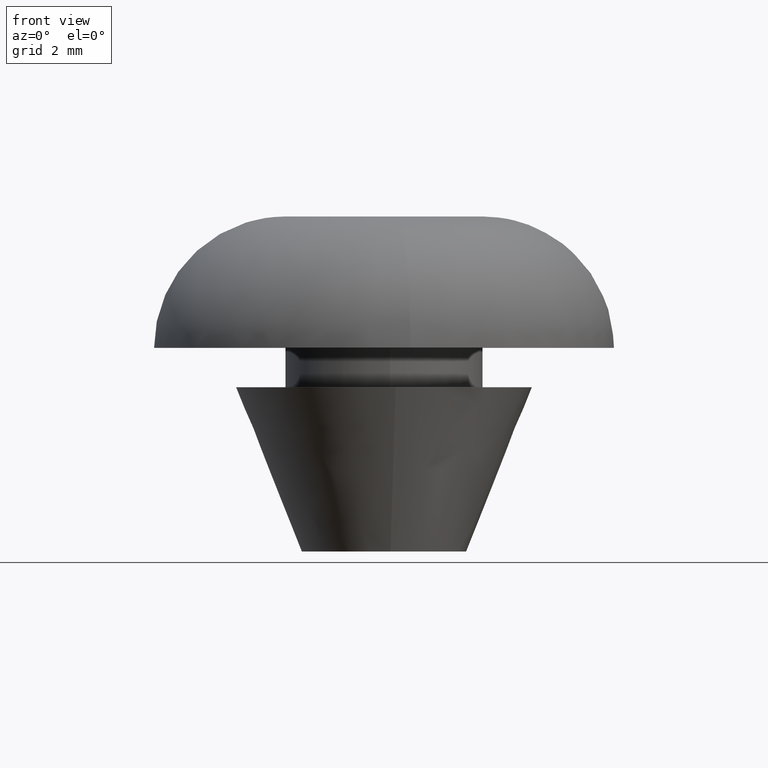
[diagram: clean part render]
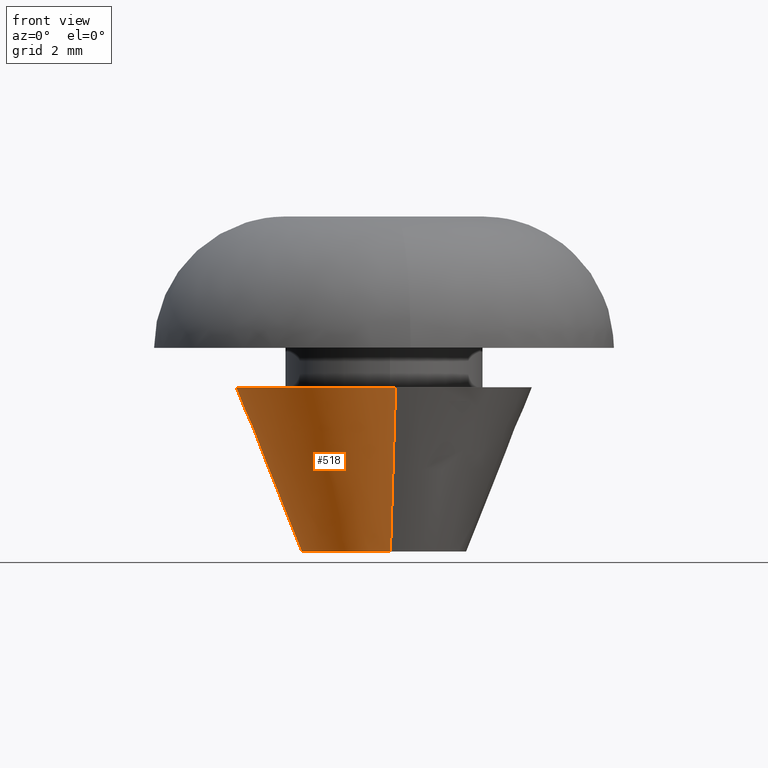
[diagram: same view with one face highlighted and labeled with its STEP entity id]
A machine part, front view. The second image highlights one B-rep face of the part: STEP entity #518.
In plain terms, the highlighted face is a freeform B-spline surface patch.
Its self-contained STEP definition (entity closure, byte-faithful):
#420=CARTESIAN_POINT('',(-0.192224784533222,2.442447467646163,-0.125000000000000));
#421=CARTESIAN_POINT('',(-2.634672252179385,2.250222683112942,-0.125000000000000));
#422=CARTESIAN_POINT('',(-2.442447467646163,-0.192224784533222,-0.125000000000000));
#423=CARTESIAN_POINT('',(-2.250222683112942,-2.634672252179385,-0.125000000000000));
#424=CARTESIAN_POINT('',(0.192224784533222,-2.442447467646163,-0.125000000000000));
#425=CARTESIAN_POINT('',(-0.357086959431357,4.537220015152898,5.128125000000001));
#426=CARTESIAN_POINT('',(-4.894306974584256,4.180133055721541,5.128125000000001));
#427=CARTESIAN_POINT('',(-4.537220015152898,-0.357086959431357,5.128125000000001));
#428=CARTESIAN_POINT('',(-4.180133055721541,-4.894306974584256,5.128125000000001));
#429=CARTESIAN_POINT('',(0.357086959431357,-4.537220015152898,5.128125000000001));
#437=(BOUNDED_SURFACE()B_SPLINE_SURFACE(2,1,((#420,#425),(#421,#426),(#422,#427),(#423,#428),(#424,#429)),.UNSPECIFIED.,.F.,.F.,.U.)B_SPLINE_SURFACE_WITH_KNOTS((3,2,3),(2,2),(0.0,7.540757903002195,15.081515806004390),(0.0,5.657788775495690),.UNSPECIFIED.)GEOMETRIC_REPRESENTATION_ITEM()RATIONAL_B_SPLINE_SURFACE(((1.0,1.0),(0.707106781186548,0.707106781186548),(1.0,1.0),(0.707106781186548,0.707106781186548),(1.0,1.0)))REPRESENTATION_ITEM('')SURFACE());
#438=CARTESIAN_POINT('',(-2.500000000000000,0.0,0.0));
#439=VERTEX_POINT('',#438);
#440=CARTESIAN_POINT('',(-0.196147739338507,2.492293334332739,3.503475E-012));
#441=VERTEX_POINT('',#440);
#442=CARTESIAN_POINT('',(-2.500000000000000,0.0,0.0));
#443=CARTESIAN_POINT('',(-2.500000000000000,2.310976229110576,0.0));
#444=CARTESIAN_POINT('',(-0.196147739338507,2.492293334332738,3.503475E-012));
#452=(BOUNDED_CURVE()B_SPLINE_CURVE(2,(#442,#443,#444),.UNSPECIFIED.,.F.,.U.)B_SPLINE_CURVE_WITH_KNOTS((3,3),(0.0,0.236331300630183),.UNSPECIFIED.)CURVE()GEOMETRIC_REPRESENTATION_ITEM()RATIONAL_B_SPLINE_CURVE((1.0,0.723120658608224,0.969723356166423))REPRESENTATION_ITEM(''));
#453=EDGE_CURVE('',#439,#441,#452,.T.);
#454=ORIENTED_EDGE('',*,*,#453,.F.);
#455=CARTESIAN_POINT('',(0.196147739338507,-2.492293334332739,3.503475E-012));
#456=VERTEX_POINT('',#455);
#457=CARTESIAN_POINT('',(0.196147739338507,-2.492293334332739,3.503475E-012));
#458=CARTESIAN_POINT('',(0.098225267538045,-2.500000000000000,0.0));
#459=CARTESIAN_POINT('',(0.0,-2.500000000000000,0.0));
#460=CARTESIAN_POINT('',(-2.500000000000000,-2.500000000000000,0.0));
#461=CARTESIAN_POINT('',(-2.500000000000000,0.0,0.0));
#469=(BOUNDED_CURVE()B_SPLINE_CURVE(2,(#457,#458,#459,#460,#461),.UNSPECIFIED.,.F.,.U.)B_SPLINE_CURVE_WITH_KNOTS((3,2,3),(0.736331300630183,0.750000000000000,1.0),.UNSPECIFIED.)CURVE()GEOMETRIC_REPRESENTATION_ITEM()RATIONAL_B_SPLINE_CURVE((0.969723356166423,0.983986122578324,1.0,0.707106781186548,1.0))REPRESENTATION_ITEM(''));
#470=EDGE_CURVE('',#456,#439,#469,.T.);
#471=ORIENTED_EDGE('',*,*,#470,.F.);
#472=CARTESIAN_POINT('',(0.353065930785465,-4.486128001799032,5.000000000001885));
#473=VERTEX_POINT('',#472);
#474=CARTESIAN_POINT('',(0.196147739338507,-2.492293334332739,3.503475E-012));
#475=CARTESIAN_POINT('',(0.353065930785465,-4.486128001799032,5.000000000001885));
#476=QUASI_UNIFORM_CURVE('',1,(#474,#475),.UNSPECIFIED.,.F.,.U.);
#477=EDGE_CURVE('',#456,#473,#476,.T.);
#478=ORIENTED_EDGE('',*,*,#477,.T.);
#479=CARTESIAN_POINT('',(-4.500000000000000,0.0,5.0));
#480=VERTEX_POINT('',#479);
#481=CARTESIAN_POINT('',(0.353065930785465,-4.486128001799032,5.000000000001885));
#482=CARTESIAN_POINT('',(0.176805481544663,-4.499999999999999,5.0));
#483=CARTESIAN_POINT('',(0.0,-4.500000000000000,5.0));
#484=CARTESIAN_POINT('',(-4.500000000000000,-4.500000000000000,4.999999999999999));
#485=CARTESIAN_POINT('',(-4.500000000000000,0.0,5.0));
#493=(BOUNDED_CURVE()B_SPLINE_CURVE(2,(#481,#482,#483,#484,#485),.UNSPECIFIED.,.F.,.U.)B_SPLINE_CURVE_WITH_KNOTS((3,2,3),(0.736331300631995,0.750000000000000,1.0),.UNSPECIFIED.)CURVE()GEOMETRIC_REPRESENTATION_ITEM()RATIONAL_B_SPLINE_CURVE((0.969723356170204,0.983986122580446,1.0,0.707106781186547,1.0))REPRESENTATION_ITEM(''));
#494=EDGE_CURVE('',#473,#480,#493,.T.);
#495=ORIENTED_EDGE('',*,*,#494,.T.);
#496=CARTESIAN_POINT('',(-0.353065930785465,4.486128001799031,5.000000000001885));
#497=VERTEX_POINT('',#496);
#498=CARTESIAN_POINT('',(-4.500000000000000,0.0,5.0));
#499=CARTESIAN_POINT('',(-4.500000000000002,4.159757212443140,5.000000000000001));
#500=CARTESIAN_POINT('',(-0.353065930785465,4.486128001799031,5.000000000001886));
#508=(BOUNDED_CURVE()B_SPLINE_CURVE(2,(#498,#499,#500),.UNSPECIFIED.,.F.,.U.)B_SPLINE_CURVE_WITH_KNOTS((3,3),(0.0,0.236331300631995),.UNSPECIFIED.)CURVE()GEOMETRIC_REPRESENTATION_ITEM()RATIONAL_B_SPLINE_CURVE((1.0,0.723120658606101,0.969723356170204))REPRESENTATION_ITEM(''));
#509=EDGE_CURVE('',#480,#497,#508,.T.);
#510=ORIENTED_EDGE('',*,*,#509,.T.);
#511=CARTESIAN_POINT('',(-0.196147739338507,2.492293334332739,3.503475E-012));
#512=CARTESIAN_POINT('',(-0.353065930785465,4.486128001799031,5.000000000001885));
#513=QUASI_UNIFORM_CURVE('',1,(#511,#512),.UNSPECIFIED.,.F.,.U.);
#514=EDGE_CURVE('',#441,#497,#513,.T.);
#515=ORIENTED_EDGE('',*,*,#514,.F.);
#516=EDGE_LOOP('',(#454,#471,#478,#495,#510,#515));
#517=FACE_OUTER_BOUND('',#516,.T.);
#518=ADVANCED_FACE('',(#517),#437,.T.);